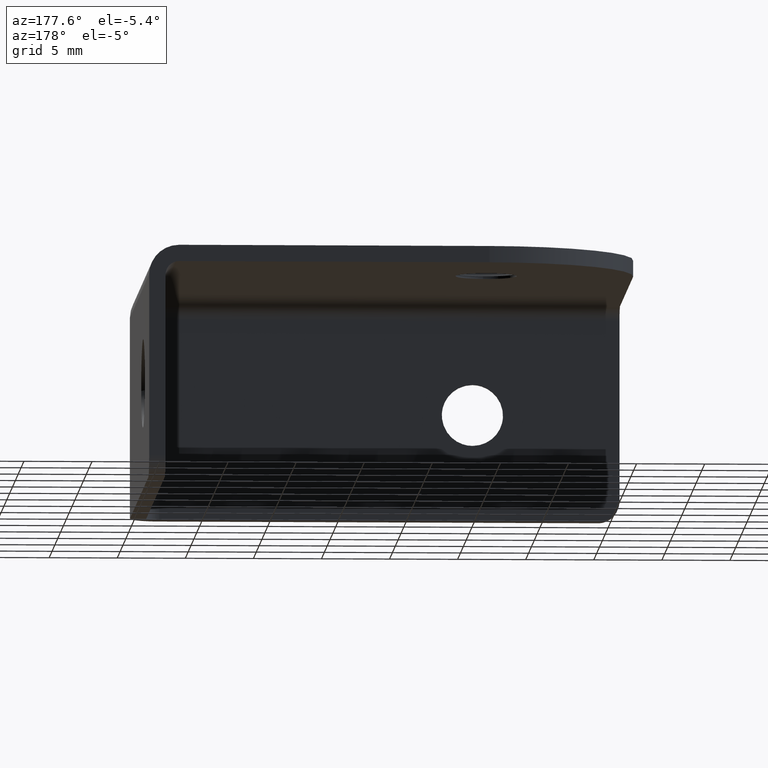
[diagram: clean part render]
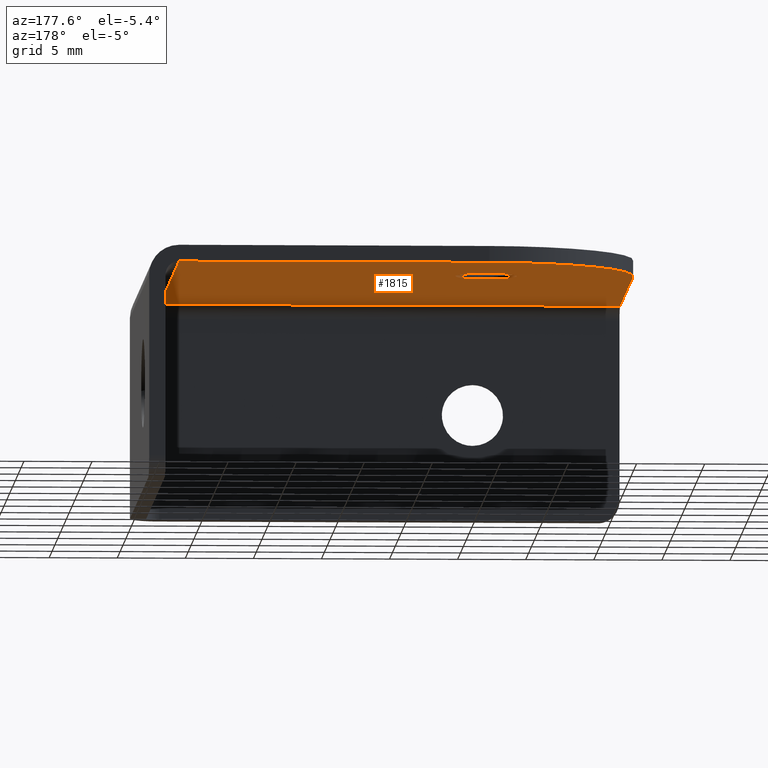
[diagram: same view with one face highlighted and labeled with its STEP entity id]
A machine part, auxiliary view. The second image highlights one B-rep face of the part: STEP entity #1815.
In plain terms, the highlighted face is a freeform B-spline surface patch.
Its self-contained STEP definition (entity closure, byte-faithful):
#79=CARTESIAN_POINT('',(-24.943273433976600,27.435305677149731,15.800000000000001));
#80=VERTEX_POINT('',#79);
#86=CARTESIAN_POINT('',(-22.949999999999999,25.199999999999999,15.800000000000001));
#87=VERTEX_POINT('',#86);
#88=CARTESIAN_POINT('',(-24.943273433976600,27.435305677149728,15.799999999999997));
#89=CARTESIAN_POINT('',(-22.950000000000006,27.206376635733438,15.800000000000001));
#90=CARTESIAN_POINT('',(-22.949999999999999,25.199999999999999,15.800000000000001));
#98=(BOUNDED_CURVE()B_SPLINE_CURVE(2,(#88,#89,#90),.UNSPECIFIED.,.F.,.U.)B_SPLINE_CURVE_WITH_KNOTS((3,3),(0.269767766530223,0.500000000000000),.UNSPECIFIED.)CURVE()GEOMETRIC_REPRESENTATION_ITEM()RATIONAL_B_SPLINE_CURVE((0.957343715445390,0.730266160257707,1.0))REPRESENTATION_ITEM(''));
#99=EDGE_CURVE('',#80,#87,#98,.T.);
#101=CARTESIAN_POINT('',(-25.062640785591949,22.954196703578610,15.800000000000001));
#102=VERTEX_POINT('',#101);
#103=CARTESIAN_POINT('',(-22.949999999999999,25.199999999999999,15.800000000000001));
#104=CARTESIAN_POINT('',(-22.950000000000010,23.083411350320731,15.799999999999999));
#105=CARTESIAN_POINT('',(-25.062640785591949,22.954196703578610,15.800000000000004));
#113=(BOUNDED_CURVE()B_SPLINE_CURVE(2,(#103,#104,#105),.UNSPECIFIED.,.F.,.U.)B_SPLINE_CURVE_WITH_KNOTS((3,3),(0.500000000000000,0.739332962172110),.UNSPECIFIED.)CURVE()GEOMETRIC_REPRESENTATION_ITEM()RATIONAL_B_SPLINE_CURVE((1.0,0.719603993365010,0.976072041523481))REPRESENTATION_ITEM(''));
#114=EDGE_CURVE('',#87,#102,#113,.T.);
#209=CARTESIAN_POINT('',(-27.449999999999999,25.199999999999999,15.800000000000001));
#210=VERTEX_POINT('',#209);
#211=CARTESIAN_POINT('',(-25.062640785591949,22.954196703578610,15.800000000000004));
#212=CARTESIAN_POINT('',(-25.131256282122276,22.949999999999999,15.800000000000001));
#213=CARTESIAN_POINT('',(-25.199999999999999,22.949999999999999,15.800000000000001));
#214=CARTESIAN_POINT('',(-27.449999999999999,22.950000000000010,15.800000000000001));
#215=CARTESIAN_POINT('',(-27.449999999999999,25.199999999999999,15.800000000000001));
#223=(BOUNDED_CURVE()B_SPLINE_CURVE(2,(#211,#212,#213,#214,#215),.UNSPECIFIED.,.F.,.U.)B_SPLINE_CURVE_WITH_KNOTS((3,2,3),(0.739332962172110,0.750000000000000,1.0),.UNSPECIFIED.)CURVE()GEOMETRIC_REPRESENTATION_ITEM()RATIONAL_B_SPLINE_CURVE((0.976072041523481,0.987502787821537,1.0,0.707106781186547,1.0))REPRESENTATION_ITEM(''));
#224=EDGE_CURVE('',#102,#210,#223,.T.);
#226=CARTESIAN_POINT('',(-27.449999999999999,25.199999999999999,15.800000000000001));
#227=CARTESIAN_POINT('',(-27.449999999999999,27.449999999999999,15.800000000000001));
#228=CARTESIAN_POINT('',(-25.199999999999999,27.449999999999999,15.800000000000001));
#229=CARTESIAN_POINT('',(-25.071216150140980,27.450000000000003,15.799999999999999));
#230=CARTESIAN_POINT('',(-24.943273433976596,27.435305677149735,15.800000000000006));
#238=(BOUNDED_CURVE()B_SPLINE_CURVE(2,(#226,#227,#228,#229,#230),.UNSPECIFIED.,.F.,.U.)B_SPLINE_CURVE_WITH_KNOTS((3,2,3),(0.0,0.250000000000000,0.269767766530223),.UNSPECIFIED.)CURVE()GEOMETRIC_REPRESENTATION_ITEM()RATIONAL_B_SPLINE_CURVE((1.0,0.707106781186547,1.0,0.976840620928841,0.957343715445390))REPRESENTATION_ITEM(''));
#239=EDGE_CURVE('',#210,#80,#238,.T.);
#1251=CARTESIAN_POINT('',(-2.200000000000000,2.200000000000000,15.800000000000001));
#1252=VERTEX_POINT('',#1251);
#1266=CARTESIAN_POINT('',(-2.200000000000000,36.0,15.800000000000001));
#1267=VERTEX_POINT('',#1266);
#1268=CARTESIAN_POINT('',(-2.200000000000000,36.0,15.800000000000001));
#1269=CARTESIAN_POINT('',(-2.200000000000000,2.200000000000000,15.800000000000001));
#1270=QUASI_UNIFORM_CURVE('',1,(#1268,#1269),.UNSPECIFIED.,.F.,.U.);
#1271=EDGE_CURVE('',#1267,#1252,#1270,.T.);
#1411=CARTESIAN_POINT('',(-36.0,2.200000000000000,15.800000000000001));
#1412=VERTEX_POINT('',#1411);
#1428=CARTESIAN_POINT('',(-2.200000000000000,2.200000000000000,15.800000000000001));
#1429=CARTESIAN_POINT('',(-36.0,2.200000000000000,15.800000000000001));
#1430=QUASI_UNIFORM_CURVE('',1,(#1428,#1429),.UNSPECIFIED.,.F.,.U.);
#1431=EDGE_CURVE('',#1252,#1412,#1430,.T.);
#1473=CARTESIAN_POINT('',(-25.0,36.0,15.800000000000001));
#1474=VERTEX_POINT('',#1473);
#1480=CARTESIAN_POINT('',(-36.0,25.0,15.800000000000001));
#1481=VERTEX_POINT('',#1480);
#1482=CARTESIAN_POINT('',(-36.000000000000007,25.0,15.800000000000001));
#1483=CARTESIAN_POINT('',(-36.000000000000014,36.000000000000014,15.799999999999997));
#1484=CARTESIAN_POINT('',(-25.0,36.000000000000007,15.800000000000001));
#1492=(BOUNDED_CURVE()B_SPLINE_CURVE(2,(#1482,#1483,#1484),.UNSPECIFIED.,.F.,.U.)CURVE()GEOMETRIC_REPRESENTATION_ITEM()QUASI_UNIFORM_CURVE()RATIONAL_B_SPLINE_CURVE((1.0,0.707106781186548,1.0))REPRESENTATION_ITEM(''));
#1493=EDGE_CURVE('',#1481,#1474,#1492,.T.);
#1587=CARTESIAN_POINT('',(-25.0,36.0,15.800000000000001));
#1588=CARTESIAN_POINT('',(-2.200000000000000,36.0,15.800000000000001));
#1589=QUASI_UNIFORM_CURVE('',1,(#1587,#1588),.UNSPECIFIED.,.F.,.U.);
#1590=EDGE_CURVE('',#1474,#1267,#1589,.T.);
#1706=CARTESIAN_POINT('',(-36.0,2.200000000000000,15.800000000000001));
#1707=CARTESIAN_POINT('',(-36.0,25.0,15.800000000000001));
#1708=QUASI_UNIFORM_CURVE('',1,(#1706,#1707),.UNSPECIFIED.,.F.,.U.);
#1709=EDGE_CURVE('',#1412,#1481,#1708,.T.);
#1797=CARTESIAN_POINT('',(-37.688309934489041,37.688309934489048,15.800000000000001));
#1798=CARTESIAN_POINT('',(-0.511689158924312,37.688309934489048,15.800000000000001));
#1799=CARTESIAN_POINT('',(-37.688309934489041,0.511689158924312,15.800000000000001));
#1800=CARTESIAN_POINT('',(-0.511689158924312,0.511689158924312,15.800000000000001));
#1801=B_SPLINE_SURFACE_WITH_KNOTS('',1,1,((#1797,#1799),(#1798,#1800)),.UNSPECIFIED.,.F.,.F.,.U.,(2,2),(2,2),(0.0,37.176620775564729),(0.0,37.176620775564743),.UNSPECIFIED.);
#1802=ORIENTED_EDGE('',*,*,#1590,.T.);
#1803=ORIENTED_EDGE('',*,*,#1271,.T.);
#1804=ORIENTED_EDGE('',*,*,#1431,.T.);
#1805=ORIENTED_EDGE('',*,*,#1709,.T.);
#1806=ORIENTED_EDGE('',*,*,#1493,.T.);
#1807=EDGE_LOOP('',(#1802,#1803,#1804,#1805,#1806));
#1808=FACE_OUTER_BOUND('',#1807,.T.);
#1809=ORIENTED_EDGE('',*,*,#114,.F.);
#1810=ORIENTED_EDGE('',*,*,#99,.F.);
#1811=ORIENTED_EDGE('',*,*,#239,.F.);
#1812=ORIENTED_EDGE('',*,*,#224,.F.);
#1813=EDGE_LOOP('',(#1809,#1810,#1811,#1812));
#1814=FACE_BOUND('',#1813,.T.);
#1815=ADVANCED_FACE('',(#1808,#1814),#1801,.T.);